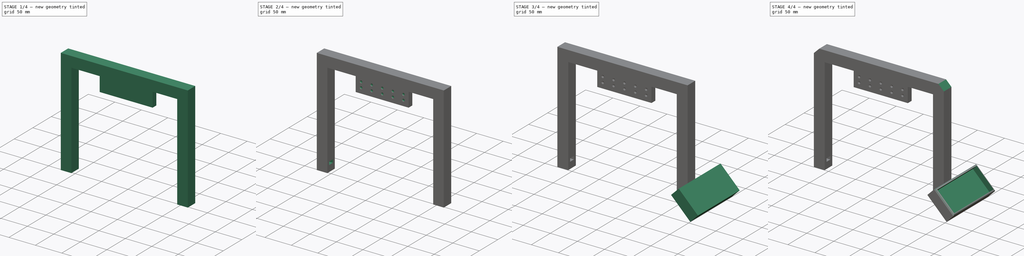
[diagram: build sequence overview — one tinted view per stage of 4, left to right]
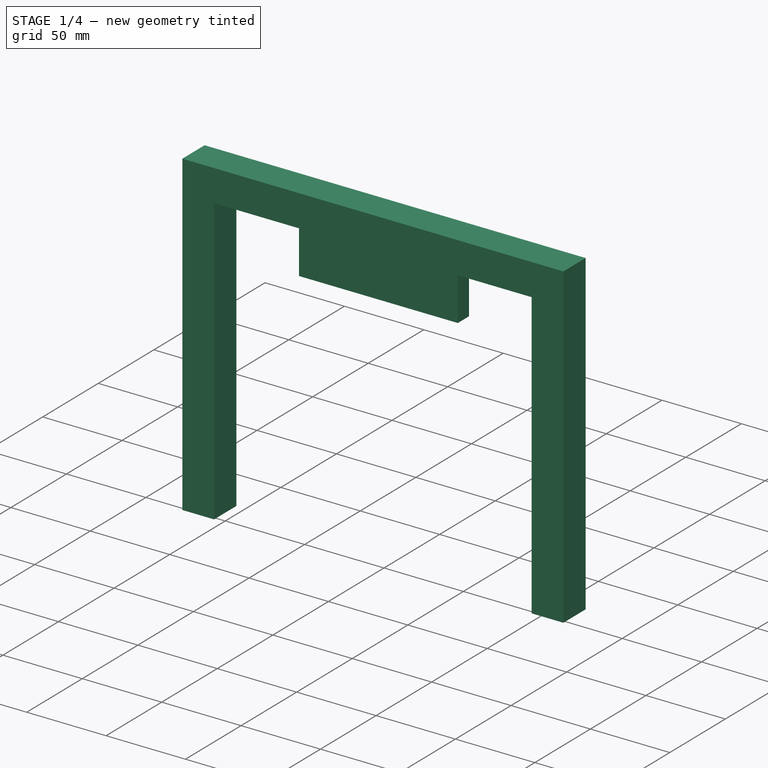
[diagram: stage 1 of 4 — iso view after this stage's code; geometry added in this stage tinted green]
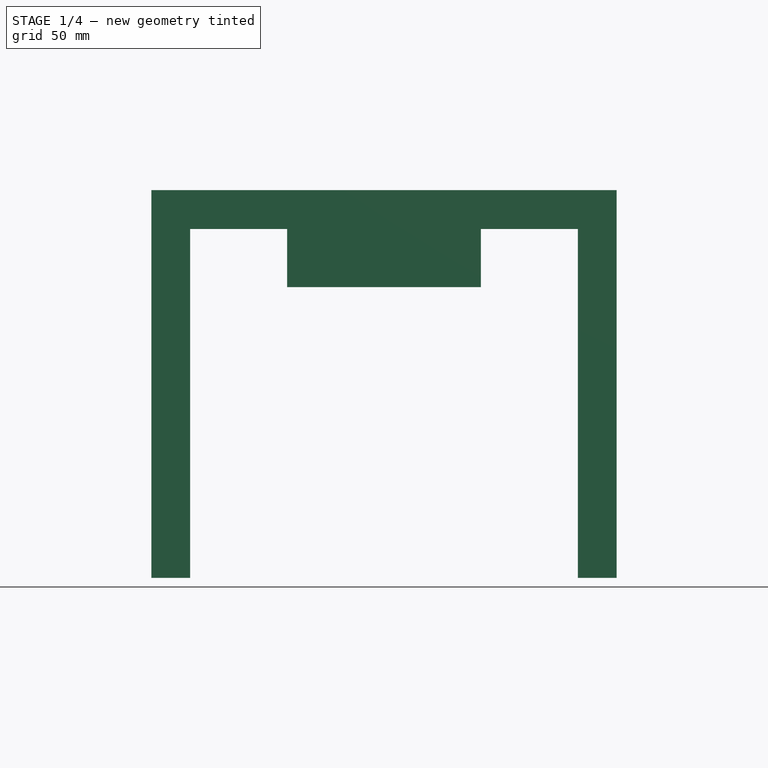
[diagram: stage 1 of 4 — front view after this stage's code; geometry added in this stage tinted green]
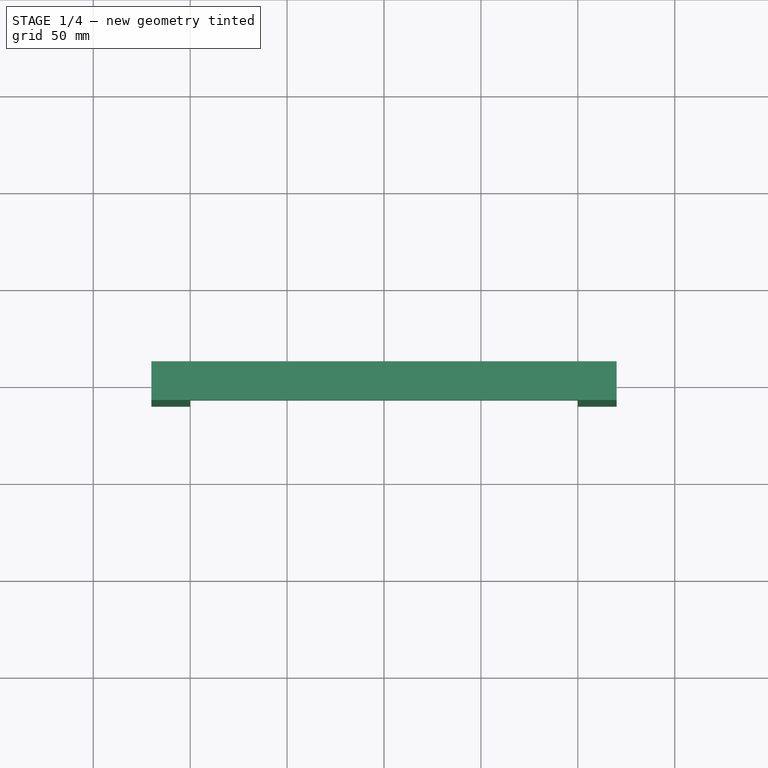
[diagram: stage 1 of 4 — top view after this stage's code; geometry added in this stage tinted green]
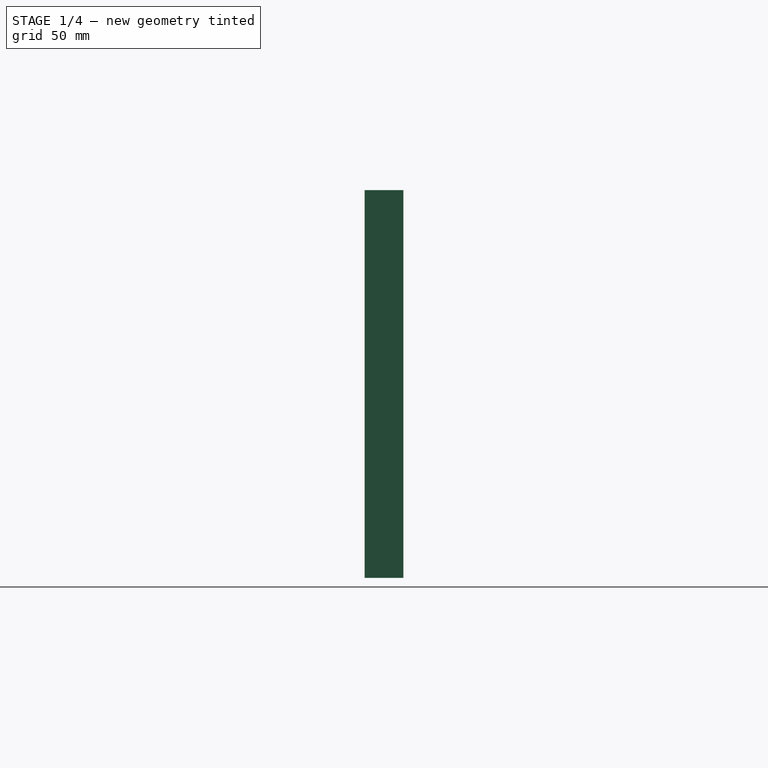
[diagram: stage 1 of 4 — right view after this stage's code; geometry added in this stage tinted green]
FCSTD DOCUMENT  (FreeCAD 0.17R13541 (Git))
Label: Laptimer
License: All rights reserved
LicenseURL: http://en.wikipedia.org/wiki/All_rights_reserved
objects: Sketcher::SketchObject×8, PartDesign::Pad×4, PartDesign::Pocket×4, PartDesign::Chamfer×2, PartDesign::Hole×1, PartDesign::Fillet×1, PartDesign::Body×1
note: 30 computed .brp shape members not serialized (recipe doc carries the construction recipe); baked Part::Feature solids carry a one-line shape summary decoded from their .brp

FEATURE [Sketcher::SketchObject] Sketch
  MapMode = 5
  Support = -> [XY_Plane]
  sketch-geometry (4):
    g0: LineSegment StartX=-120 StartY=10 StartZ=0 EndX=120 EndY=10 EndZ=0
    g1: LineSegment StartX=120 StartY=10 StartZ=0 EndX=120 EndY=-10 EndZ=0
    g2: LineSegment StartX=120 StartY=-10 StartZ=0 EndX=-120 EndY=-10 EndZ=0
    g3: LineSegment StartX=-120 StartY=-10 StartZ=0 EndX=-120 EndY=10 EndZ=0
  constraints (11):
    c: Coincident(g0,g1)
    c: Coincident(g1,g2)
    c: Coincident(g2,g3)
    c: Coincident(g3,g0)
    c: Horizontal(g0)
    c: Horizontal(g2)
    c: Vertical(g1)
    c: Vertical(g3)
    c: DistanceY(g3,g3) = 20
    c: DistanceX(g0,g0) = 240
    c: Symmetric(g2,g0,g-1)
FEATURE [PartDesign::Pad] Pad
  Length = 200
  Length2 = 100
  Profile = -> Sketch
  Type = 0
FEATURE [Sketcher::SketchObject] Sketch001
  ExternalGeometry = -> [Pad]
  MapMode = 5
  Placement = pos=(0,-10,0) rot=(1,0,0;1.5708rad)
  Support = -> [Pad]
  sketch-geometry (4):
    g0: LineSegment StartX=-100 StartY=180 StartZ=0 EndX=100 EndY=180 EndZ=0
    g1: LineSegment StartX=100 StartY=180 StartZ=0 EndX=100 EndY=0 EndZ=0
    g2: LineSegment StartX=100 StartY=0 StartZ=0 EndX=-100 EndY=0 EndZ=0
    g3: LineSegment StartX=-100 StartY=0 StartZ=0 EndX=-100 EndY=180 EndZ=0
  constraints (12):
    c: Coincident(g0,g1)
    c: Coincident(g1,g2)
    c: Coincident(g2,g3)
    c: Coincident(g3,g0)
    c: Horizontal(g0)
    c: Horizontal(g2)
    c: Vertical(g1)
    c: Vertical(g3)
    c: PointOnObject(g2,g-6)
    c: DistanceY(g0,g-4) = 20
    c: DistanceX(g-4,g0) = 20
    c: Symmetric(g0,g0,g-2)
FEATURE [PartDesign::Pocket] Pocket
  BaseFeature = -> Pad
  Length = 5
  Length2 = 100
  Profile = -> Sketch001
  Type = 1
FEATURE [Sketcher::SketchObject] Sketch002
  ExternalGeometry = -> [Pocket]
  MapMode = 5
  Placement = pos=(0,0,180) rot=(1,0,0;3.14159rad)
  Support = -> [Pocket]
  sketch-geometry (4):
    g0: LineSegment StartX=-50 StartY=5 StartZ=0 EndX=50 EndY=5 EndZ=0
    g1: LineSegment StartX=50 StartY=5 StartZ=0 EndX=50 EndY=-5 EndZ=0
    g2: LineSegment StartX=50 StartY=-5 StartZ=0 EndX=-50 EndY=-5 EndZ=0
    g3: LineSegment StartX=-50 StartY=-5 StartZ=0 EndX=-50 EndY=5 EndZ=0
  constraints (12):
    c: Coincident(g0,g1)
    c: Coincident(g1,g2)
    c: Coincident(g2,g3)
    c: Coincident(g3,g0)
    c: Horizontal(g0)
    c: Horizontal(g2)
    c: Vertical(g1)
    c: Vertical(g3)
    c: Symmetric(g0,g0,g-2)
    c: DistanceY(g0) = 5
    c: Symmetric(g0,g2,g-1)
    c: DistanceX(g1,g-6) = 50
FEATURE [PartDesign::Pad] Pad001
  BaseFeature = -> Pocket
  Length = 30
  Length2 = 100
  Profile = -> Sketch002
  Type = 0
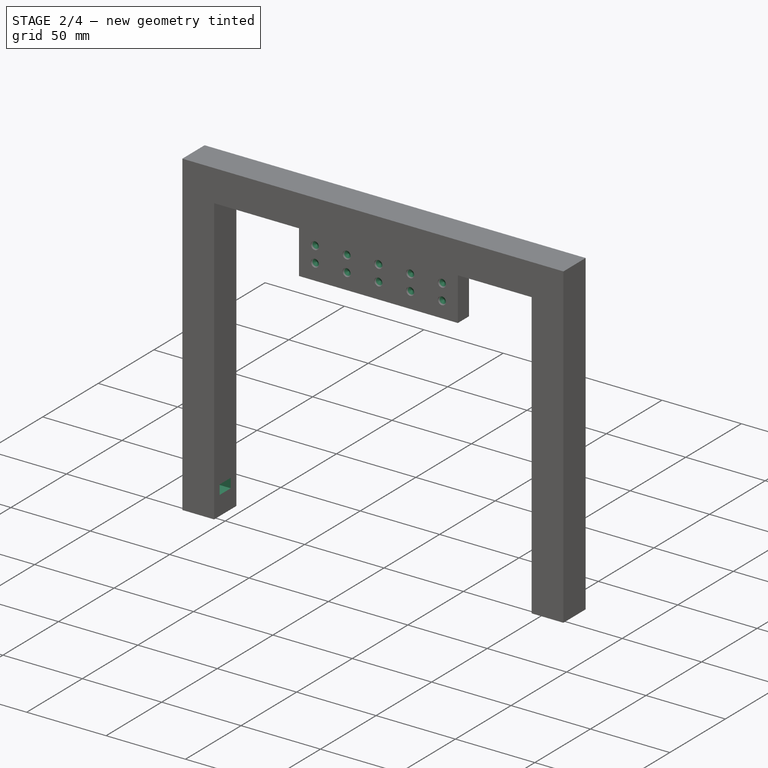
[diagram: stage 2 of 4 — iso view after this stage's code; geometry added in this stage tinted green]
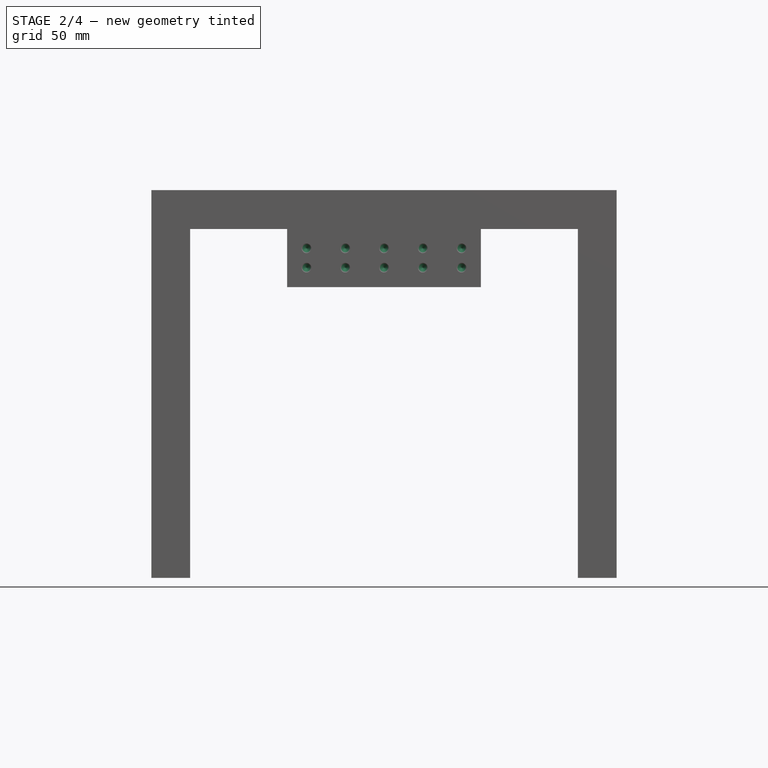
[diagram: stage 2 of 4 — front view after this stage's code; geometry added in this stage tinted green]
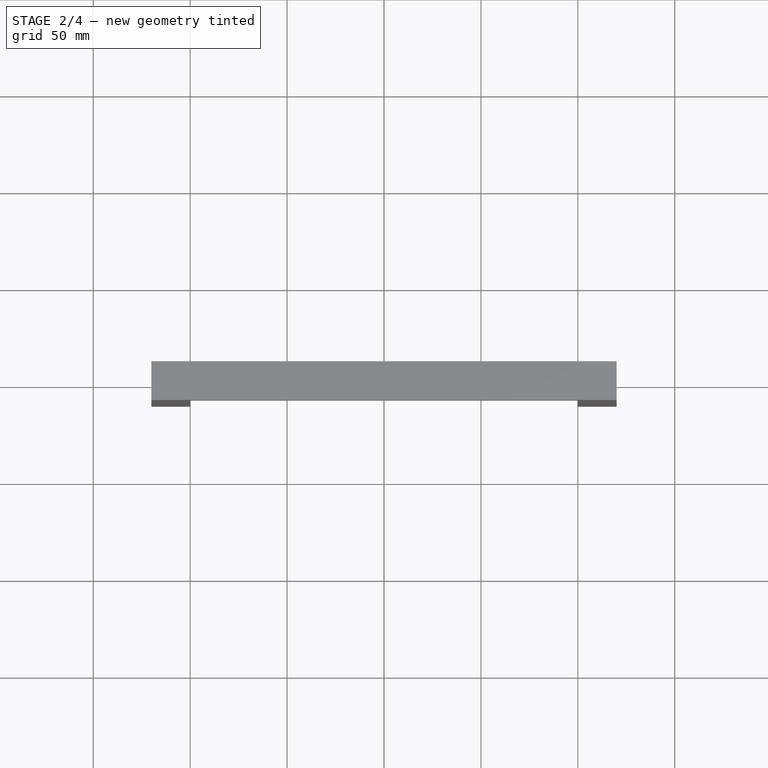
[diagram: stage 2 of 4 — top view after this stage's code; geometry added in this stage tinted green]
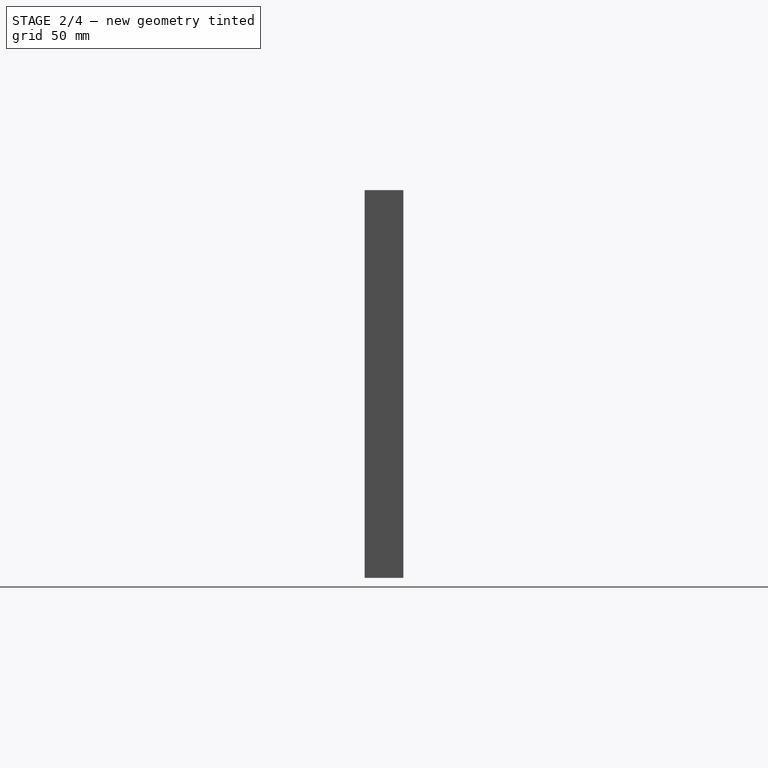
[diagram: stage 2 of 4 — right view after this stage's code; geometry added in this stage tinted green]
FEATURE [Sketcher::SketchObject] Sketch003
  ExternalGeometry = -> [Pad001]
  MapMode = 5
  Placement = pos=(0,-5,0) rot=(1,0,0;1.5708rad)
  Support = -> [Pad001]
  sketch-geometry (23):
    g0: Circle CenterX=-40 CenterY=170 CenterZ=0 NormalX=0 NormalY=0 NormalZ=1 AngleXU=0 Radius=4
    g1: Circle CenterX=-20 CenterY=170 CenterZ=0 NormalX=0 NormalY=0 NormalZ=1 AngleXU=0 Radius=4
    g2: Circle CenterX=0 CenterY=170 CenterZ=0 NormalX=0 NormalY=0 NormalZ=1 AngleXU=0 Radius=4
    g3: GeomPoint X=-20 Y=170 Z=0
    g4: GeomPoint X=0 Y=170 Z=0
    g5: Circle CenterX=20 CenterY=170 CenterZ=0 NormalX=0 NormalY=0 NormalZ=1 AngleXU=0 Radius=4
    g6: GeomPoint X=20 Y=170 Z=0
    g7: GeomPoint X=20 Y=170 Z=0
    g8: Circle CenterX=40 CenterY=170 CenterZ=0 NormalX=0 NormalY=0 NormalZ=1 AngleXU=0 Radius=4
    g9: GeomPoint X=40 Y=170 Z=0
    g10: Circle CenterX=-40 CenterY=160 CenterZ=0 NormalX=0 NormalY=0 NormalZ=1 AngleXU=0 Radius=4
    g11: Circle CenterX=-20 CenterY=160 CenterZ=0 NormalX=0 NormalY=0 NormalZ=1 AngleXU=0 Radius=4
    g12: Circle CenterX=0 CenterY=160 CenterZ=0 NormalX=0 NormalY=0 NormalZ=1 AngleXU=0 Radius=4
    g13: GeomPoint X=-20 Y=160 Z=0
    g14: GeomPoint X=0 Y=160 Z=0
    g15: Circle CenterX=20 CenterY=160 CenterZ=0 NormalX=0 NormalY=0 NormalZ=1 AngleXU=0 Radius=4
    g16: GeomPoint X=20 Y=160 Z=0
    g17: GeomPoint X=20 Y=160 Z=0
    g18: Circle CenterX=40 CenterY=160 CenterZ=0 NormalX=0 NormalY=0 NormalZ=1 AngleXU=0 Radius=4
    g19: GeomPoint X=40 Y=160 Z=0
    g20: GeomPoint X=-40 Y=160 Z=0
    g21: GeomPoint X=-20 Y=160 Z=0
    g22: GeomPoint X=0 Y=160 Z=0
  constraints (43):
    c: Radius(g0) = 4
    c: Equal(g0,g1) = 4
    c: Equal(g2,g1)
    c: Coincident(g1,g3)
    c: Coincident(g2,g4)
    c: DistanceX(g0,g1) = 20
    c: DistanceX(g1,g2) = 20
    c: Coincident(g5,g6)
    c: Coincident(g5,g7)
    c: DistanceX(g2,g5) = 20
    c: Equal(g2,g5)
    c: Coincident(g8,g9)
    c: DistanceX(g5,g8) = 20
    c: Equal(g5,g8)
    c: Equal(g0,g10) = 4
    c: Equal(g10,g11) = 4
    c: Equal(g12,g11)
    c: Coincident(g11,g13)
    c: Coincident(g12,g14)
    c: DistanceX(g10,g11) = 20
    c: DistanceX(g11,g12) = 20
    c: Coincident(g15,g16)
    c: Coincident(g15,g17)
    c: DistanceX(g12,g15) = 20
    c: Equal(g12,g15)
    c: Coincident(g18,g19)
    c: DistanceX(g15,g18) = 20
    c: Equal(g15,g18)
    c: Coincident(g10,g20)
    c: Coincident(g11,g21)
    c: Coincident(g12,g22)
    c: DistanceX(g-5,g10) = 10
    c: DistanceX(g-6,g0) = 10
    c: DistanceY(g0,g-6) = 10
    c: DistanceY(g1,g-6) = 10
    c: DistanceY(g2,g-6) = 10
    c: DistanceY(g5,g-6) = 10
    c: DistanceY(g8,g-6) = 10
    c: DistanceY(g-5,g18) = 10
    c: DistanceY(g-5,g15) = 10
    c: DistanceY(g-5,g12) = 10
    c: DistanceY(g-5,g11) = 10
    c: DistanceY(g-5,g10) = 10
FEATURE [PartDesign::Hole] Hole
  BaseFeature = -> Pad001
  Depth = 2
  DepthType = 0
  Diameter = 5
  DrillPoint = 1
  DrillPointAngle = 118
  HoleCutCountersinkAngle = 90
  HoleCutDepth = 0
  HoleCutDiameter = 0
  HoleCutType = 0
  ModelActualThread = false
  Profile = -> Sketch003
  Tapered = false
  TaperedAngle = 90
  ThreadAngle = 0
  ThreadClass = 0
  ThreadCutOffInner = 0
  ThreadCutOffOuter = 0
  ThreadDirection = 0
  ThreadFit = 0
  ThreadPitch = 0
  ThreadSize = 0
  ThreadType = 0
  Threaded = false
FEATURE [Sketcher::SketchObject] Sketch004
  ExternalGeometry = -> [Hole]
  MapMode = 5
  Placement = pos=(-100,0,0) rot=(0.57735,0.57735,0.57735;2.0944rad)
  Support = -> [Hole]
  sketch-geometry (4):
    g0: LineSegment StartX=-5 StartY=18 StartZ=0 EndX=5 EndY=18 EndZ=0
    g1: LineSegment StartX=5 StartY=18 StartZ=0 EndX=5 EndY=12 EndZ=0
    g2: LineSegment StartX=5 StartY=12 StartZ=0 EndX=-5 EndY=12 EndZ=0
    g3: LineSegment StartX=-5 StartY=12 StartZ=0 EndX=-5 EndY=18 EndZ=0
  constraints (12):
    c: Coincident(g0,g1)
    c: Coincident(g1,g2)
    c: Coincident(g2,g3)
    c: Coincident(g3,g0)
    c: Horizontal(g0)
    c: Horizontal(g2)
    c: Vertical(g1)
    c: Vertical(g3)
    c: DistanceY(g3,g3) = 6
    c: DistanceX(g0,g0) = 10
    c: DistanceY(g-5,g1) = 12
    c: DistanceX(g1,g-5) = 5
FEATURE [PartDesign::Pocket] Pocket001
  BaseFeature = -> Hole
  Length = 15
  Length2 = 100
  Midplane = true
  Profile = -> Sketch004
  Type = 0
FEATURE [Sketcher::SketchObject] Sketch005
  ExternalGeometry = -> [Pocket001]
  MapMode = 5
  Placement = pos=(100,0,0) rot=(0.57735,-0.57735,-0.57735;2.0944rad)
  Support = -> [Pocket001]
  sketch-geometry (4):
    g0: LineSegment StartX=-5 StartY=17 StartZ=0 EndX=5 EndY=17 EndZ=0
    g1: LineSegment StartX=5 StartY=17 StartZ=0 EndX=5 EndY=12 EndZ=0
    g2: LineSegment StartX=5 StartY=12 StartZ=0 EndX=-5 EndY=12 EndZ=0
    g3: LineSegment StartX=-5 StartY=12 StartZ=0 EndX=-5 EndY=17 EndZ=0
  constraints (12):
    c: Coincident(g0,g1)
    c: Coincident(g1,g2)
    c: Coincident(g2,g3)
    c: Coincident(g3,g0)
    c: Horizontal(g0)
    c: Horizontal(g2)
    c: Vertical(g1)
    c: Vertical(g3)
    c: DistanceY(g3,g3) = 5
    c: DistanceX(g0,g0) = 10
    c: DistanceX(g1,g-5) = 5
    c: DistanceY(g-5,g2) = 12
FEATURE [PartDesign::Pocket] Pocket002
  BaseFeature = -> Pocket001
  Length = 15
  Length2 = 100
  Profile = -> Sketch005
  Type = 0
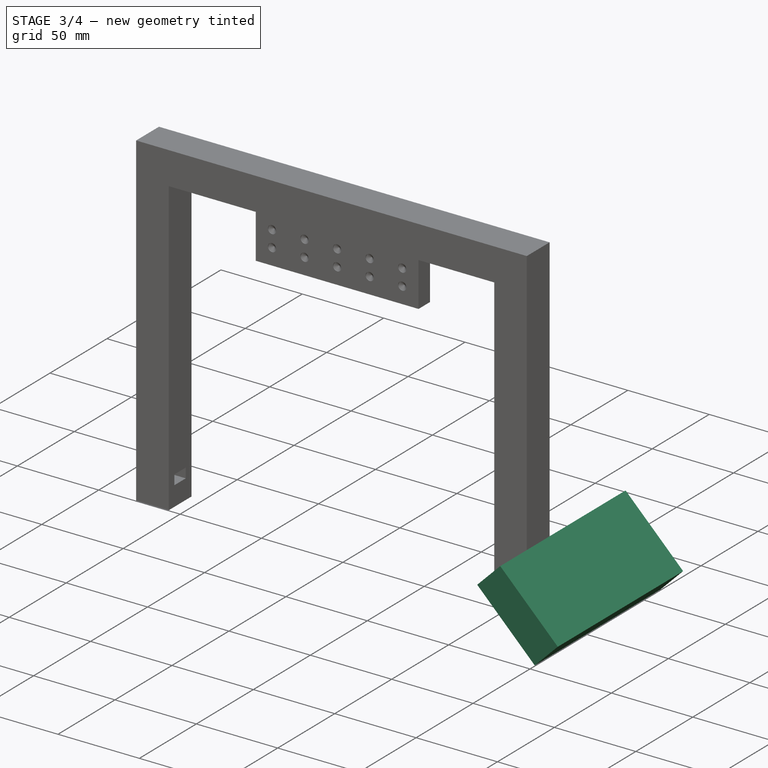
[diagram: stage 3 of 4 — iso view after this stage's code; geometry added in this stage tinted green]
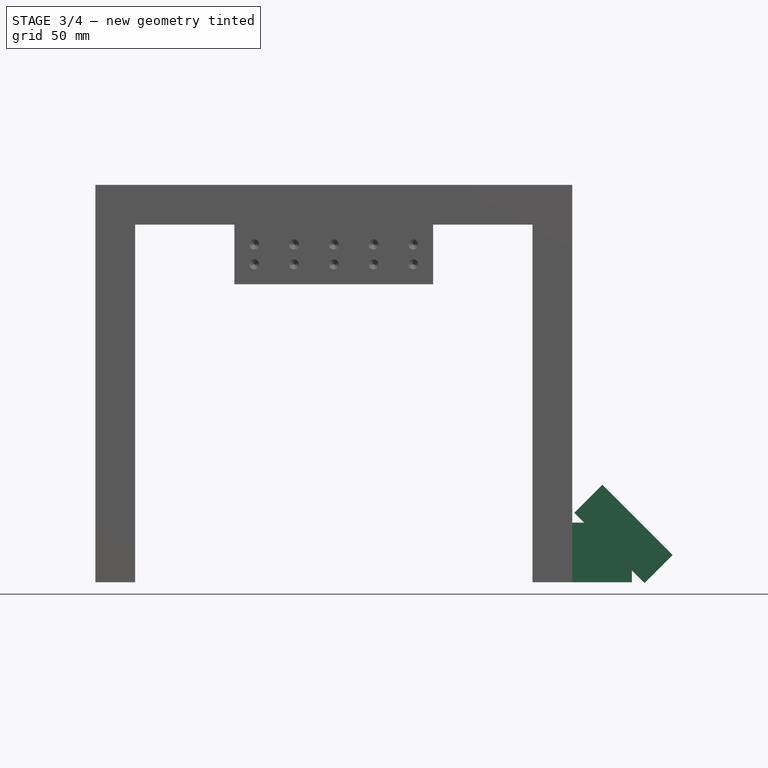
[diagram: stage 3 of 4 — front view after this stage's code; geometry added in this stage tinted green]
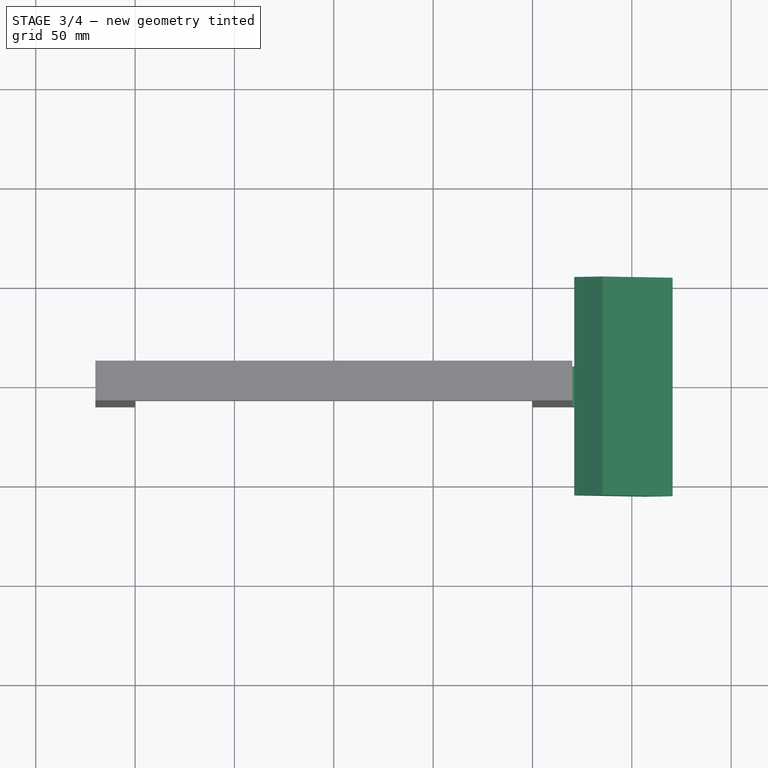
[diagram: stage 3 of 4 — top view after this stage's code; geometry added in this stage tinted green]
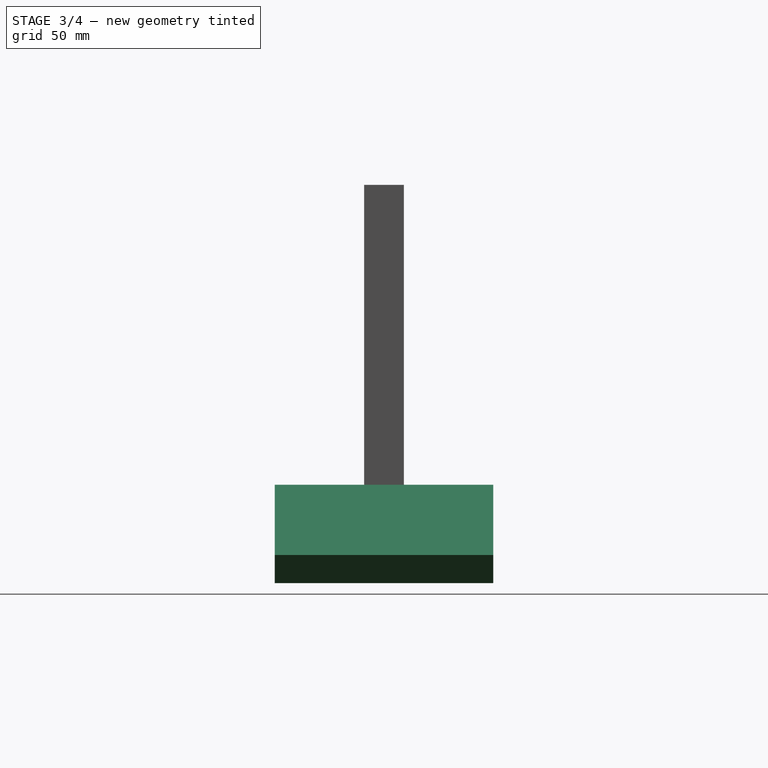
[diagram: stage 3 of 4 — right view after this stage's code; geometry added in this stage tinted green]
FEATURE [Sketcher::SketchObject] Sketch006
  ExternalGeometry = -> [Pocket002]
  MapMode = 5
  Placement = pos=(120,0,0) rot=(0.57735,0.57735,0.57735;2.0944rad)
  Support = -> [Pocket002]
  sketch-geometry (4):
    g0: LineSegment StartX=-10 StartY=30 StartZ=0 EndX=10 EndY=30 EndZ=0
    g1: LineSegment StartX=10 StartY=30 StartZ=0 EndX=10 EndY=0 EndZ=0
    g2: LineSegment StartX=10 StartY=0 StartZ=0 EndX=-10 EndY=0 EndZ=0
    g3: LineSegment StartX=-10 StartY=0 StartZ=0 EndX=-10 EndY=30 EndZ=0
  constraints (12):
    c: Coincident(g0,g1)
    c: Coincident(g1,g2)
    c: Coincident(g2,g3)
    c: Coincident(g3,g0)
    c: Horizontal(g0)
    c: Horizontal(g2)
    c: Vertical(g1)
    c: Vertical(g3)
    c: PointOnObject(g2,g-5)
    c: PointOnObject(g0,g-3)
    c: PointOnObject(g0,g-4)
    c: DistanceY(g3,g3) = 30
FEATURE [PartDesign::Pad] Pad002
  BaseFeature = -> Pocket002
  Length = 30
  Length2 = 100
  Profile = -> Sketch006
  Type = 0
FEATURE [PartDesign::Chamfer] Chamfer
  Base = -> Pad002 [Edge55]
  BaseFeature = -> Pad002
  Size = 24
FEATURE [Sketcher::SketchObject] Sketch007
  ExternalGeometry = -> [Chamfer]
  MapMode = 5
  Placement = pos=(78,0,78) rot=(0.357407,0.357407,0.862856;1.71777rad)
  Support = -> [Chamfer]
  sketch-geometry (4):
    g0: LineSegment StartX=-55 StartY=-60.8823 StartZ=0 EndX=55 EndY=-60.8823 EndZ=0
    g1: LineSegment StartX=55 StartY=-60.8823 StartZ=0 EndX=55 EndY=-110.882 EndZ=0
    g2: LineSegment StartX=55 StartY=-110.882 StartZ=0 EndX=-55 EndY=-110.882 EndZ=0
    g3: LineSegment StartX=-55 StartY=-110.882 StartZ=0 EndX=-55 EndY=-60.8823 EndZ=0
  constraints (12):
    c: Coincident(g0,g1)
    c: Coincident(g1,g2)
    c: Coincident(g2,g3)
    c: Coincident(g3,g0)
    c: Horizontal(g0)
    c: Horizontal(g2)
    c: Vertical(g1)
    c: Vertical(g3)
    c: DistanceY(g3,g3) = 50
    c: DistanceX(g0,g0) = 110
    c: DistanceX(g0,g-5) = 45
    c: DistanceY(g-5,g0) = 7
FEATURE [PartDesign::Pad] Pad003
  BaseFeature = -> Chamfer
  Length = 20
  Length2 = 100
  Profile = -> Sketch007
  Type = 0
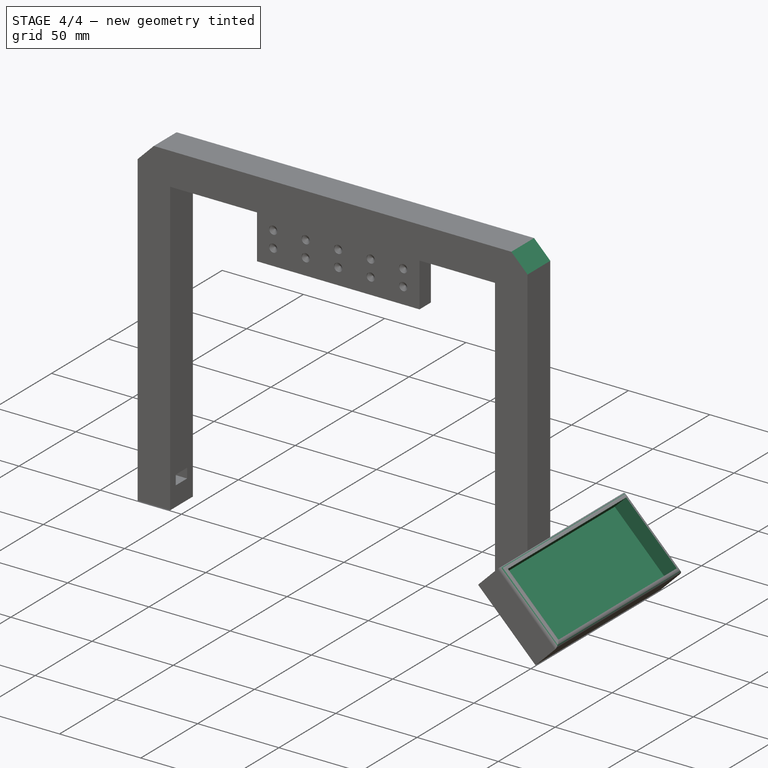
[diagram: stage 4 of 4 — iso view after this stage's code; geometry added in this stage tinted green]
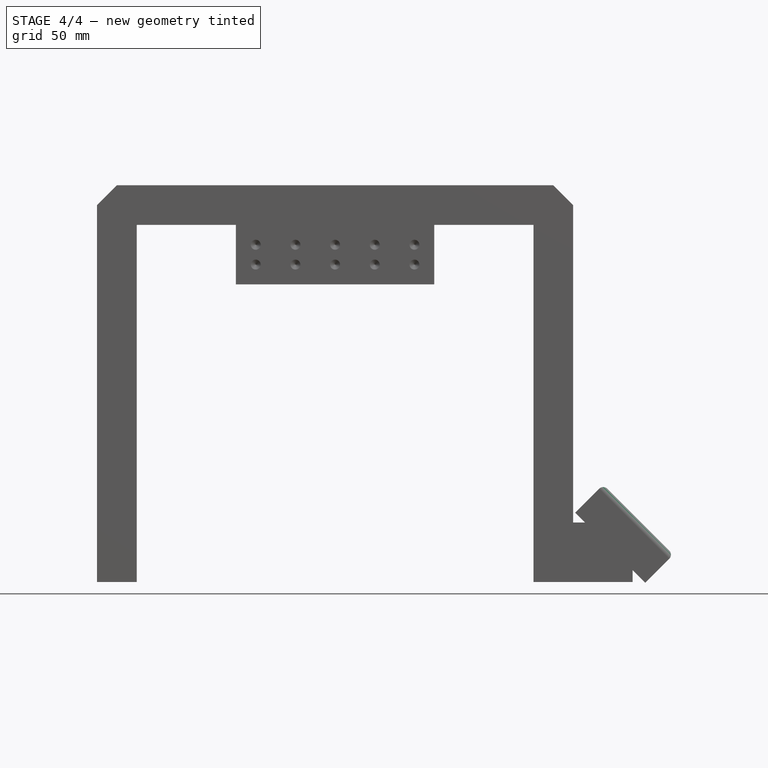
[diagram: stage 4 of 4 — front view after this stage's code; geometry added in this stage tinted green]
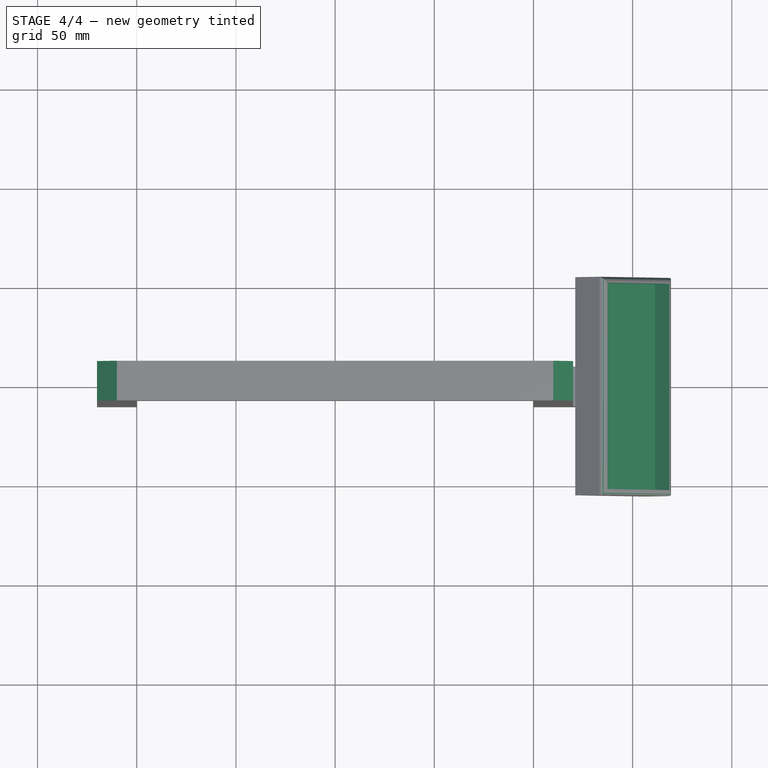
[diagram: stage 4 of 4 — top view after this stage's code; geometry added in this stage tinted green]
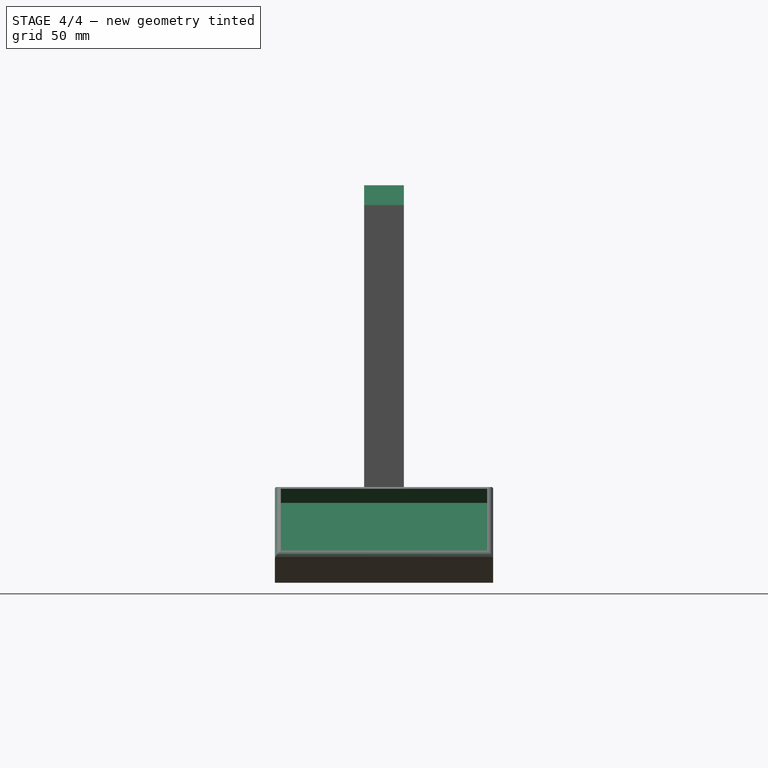
[diagram: stage 4 of 4 — right view after this stage's code; geometry added in this stage tinted green]
FEATURE [PartDesign::Fillet] Fillet
  Base = -> Pad003 [Edge47,Edge50,Edge45,Edge49]
  BaseFeature = -> Pad003
  Radius = 3
FEATURE [PartDesign::Pocket] Pocket003
  BaseFeature = -> Fillet
  Length = 10
  Length2 = 100
  Profile = -> Fillet [Face8]
  Type = 0
FEATURE [PartDesign::Chamfer] Chamfer001  label="Kanten_oben"
  Base = -> Pocket003 [Edge52,Edge72]
  BaseFeature = -> Pocket003
  Size = 10
FEATURE [PartDesign::Body] Body  label="Finishline_Arc"
  Group = -> [Sketch,Pad,Sketch001,Pocket,Sketch002,Pad001,Sketch003,Hole,Sketch004,Pocket001,Sketch005,Pocket002,Sketch006,Pad002,Chamfer,Sketch007,Pad003,Fillet,Pocket003,Chamfer001]
  Origin = -> Origin
  Tip = -> Chamfer001
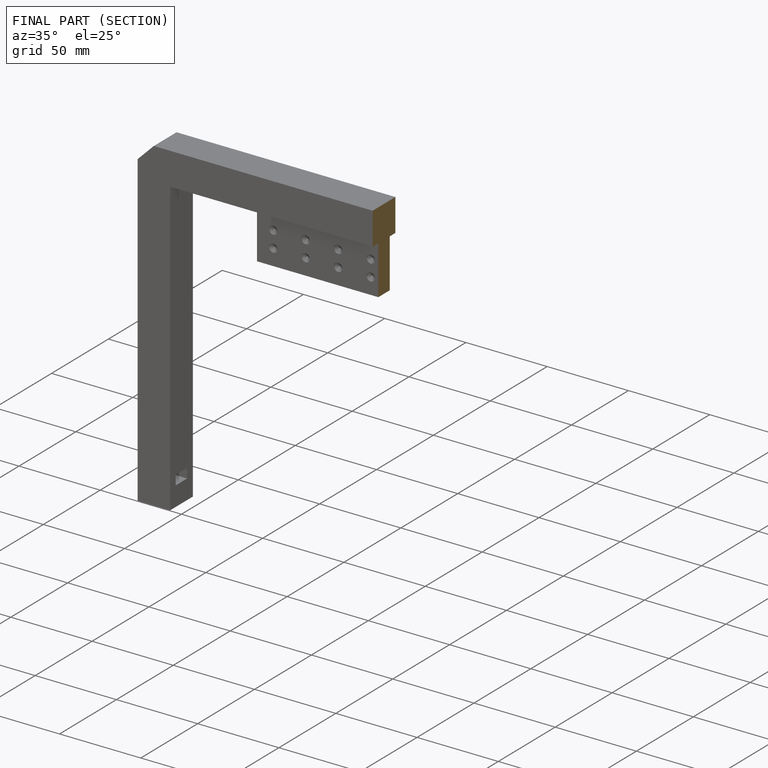
[diagram: finished part — half-section view (interior)]
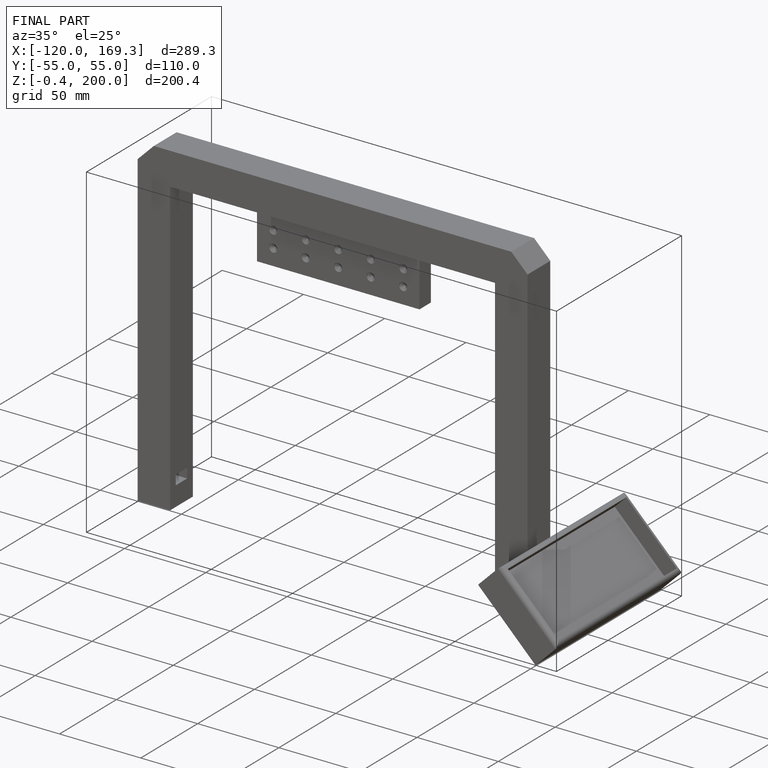
[diagram: finished part — iso view with bounding-box wireframe]
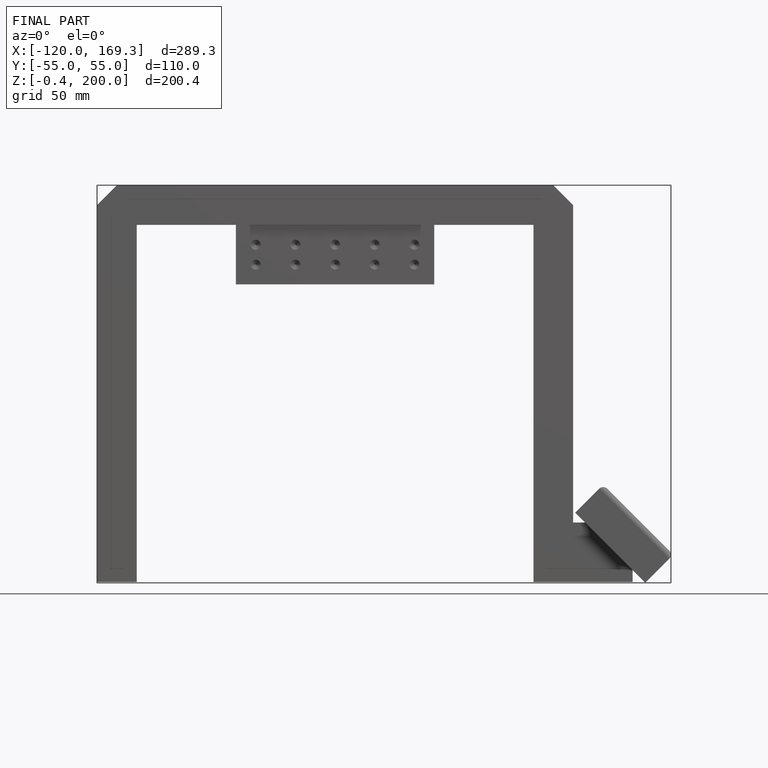
[diagram: finished part — front view with bounding-box wireframe]
